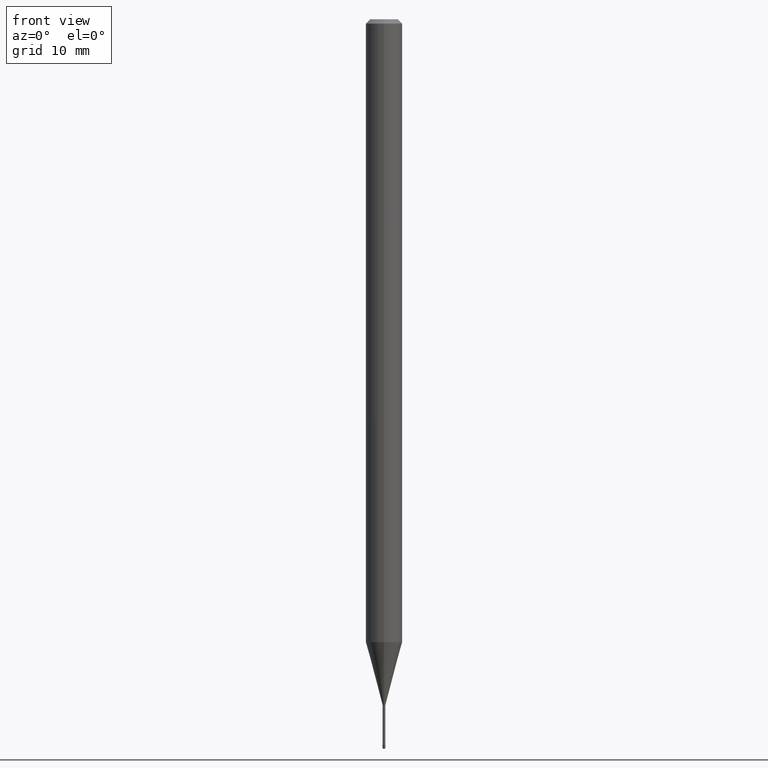
[diagram: clean part render]
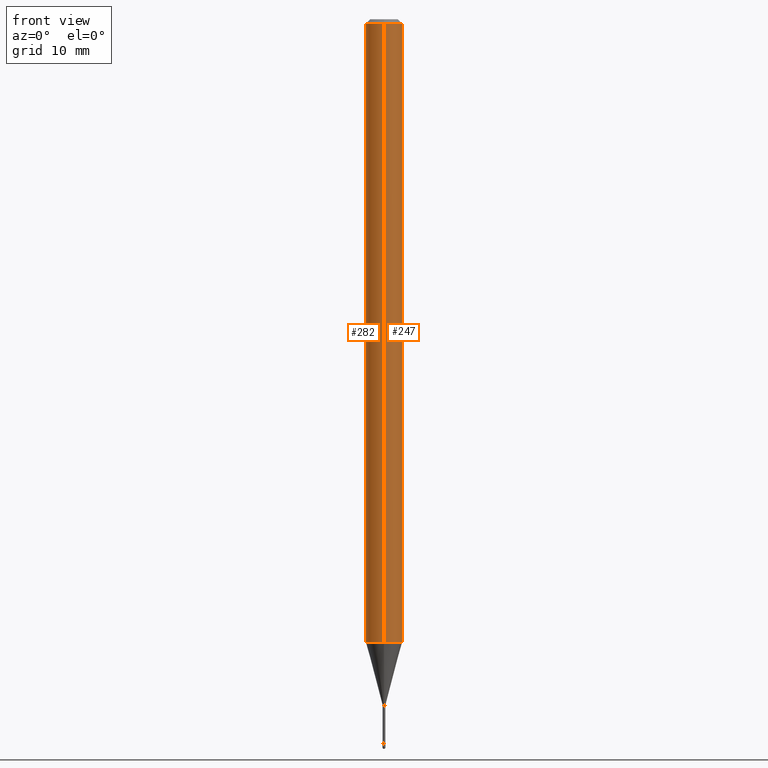
[diagram: same view with one multi-face feature highlighted, each face labeled with its STEP entity id]
A machine part, front view. The highlighted faces form ONE feature: a constant-radius fillet chain: 2 tangent blend faces with common blend radius 1.5875 mm. The faces share edges in the B-rep.
Their STEP definitions:
[1] entity #247 (Cylinder):
#2 = DIRECTION ( 'NONE',  ( -6.982962677686265922E-15, -1.000000000000000000, 3.483106191921935554E-15 ) ) ;
#18 = CARTESIAN_POINT ( 'NONE',  ( -4.364351673553394567E-16, -0.06250000000000745237, -2.134287463322519063 ) ) ;
#20 = CARTESIAN_POINT ( 'NONE',  ( 4.440892098500625669E-16, 0.06250000000000000000, 2.597540414594082475E-16 ) ) ;
#22 = EDGE_CURVE ( 'NONE', #486, #312, #194, .T. ) ;
#29 = AXIS2_PLACEMENT_3D ( 'NONE', #542, #212, #240 ) ;
#38 = ORIENTED_EDGE ( 'NONE', *, *, #558, .T. ) ;
#56 = DIRECTION ( 'NONE',  ( -2.444331714462359119E-29, 3.493109718909404263E-15, 1.000000000000000000 ) ) ;
#71 = ORIENTED_EDGE ( 'NONE', *, *, #346, .F. ) ;
#76 = CARTESIAN_POINT ( 'NONE',  ( 5.216906534378652814E-29, -7.455300281078391221E-15, -2.134287463322519507 ) ) ;
#90 = ORIENTED_EDGE ( 'NONE', *, *, #22, .F. ) ;
#102 = AXIS2_PLACEMENT_3D ( 'NONE', #76, #456, #425 ) ;
#141 = CARTESIAN_POINT ( 'NONE',  ( 4.440892098501151740E-16, 0.06249999999999995143, -0.01500000000000030129 ) ) ;
#173 = VECTOR ( 'NONE', #379, 39.37007874015748143 ) ;
#183 = CIRCLE ( 'NONE', #102, 0.06250000000000000000 ) ;
#193 = FACE_OUTER_BOUND ( 'NONE', #382, .T. ) ;
#194 = LINE ( 'NONE', #537, #173 ) ;
#195 = DIRECTION ( 'NONE',  ( -2.444331714462359119E-29, 3.493109718909404657E-15, 1.000000000000000000 ) ) ;
#212 = DIRECTION ( 'NONE',  ( -2.444331714462359119E-29, 3.493109718909404657E-15, 1.000000000000000000 ) ) ;
#240 = DIRECTION ( 'NONE',  ( -6.982962677686265922E-15, -1.000000000000000000, 3.493109718909404263E-15 ) ) ;
#247 = ADVANCED_FACE ( 'NONE', ( #193 ), #412, .T. ) ;
#271 = AXIS2_PLACEMENT_3D ( 'NONE', #275, #195, #2 ) ;
#275 = CARTESIAN_POINT ( 'NONE',  ( 3.666497571693559050E-31, -5.239664578364136248E-17, -0.01500000000000008271 ) ) ;
#300 = CIRCLE ( 'NONE', #271, 0.06250000000000000000 ) ;
#312 = VERTEX_POINT ( 'NONE', #323 ) ;
#314 = EDGE_CURVE ( 'NONE', #486, #522, #183, .T. ) ;
#323 = CARTESIAN_POINT ( 'NONE',  ( -4.364351673553912750E-16, -0.06250000000000005551, -0.01499999999999986587 ) ) ;
#324 = VERTEX_POINT ( 'NONE', #141 ) ;
#346 = EDGE_CURVE ( 'NONE', #312, #324, #300, .T. ) ;
#379 = DIRECTION ( 'NONE',  ( -2.444331714462359119E-29, 3.493109718909404263E-15, 1.000000000000000000 ) ) ;
#382 = EDGE_LOOP ( 'NONE', ( #476, #38, #71, #90 ) ) ;
#387 = VECTOR ( 'NONE', #56, 39.37007874015748143 ) ;
#412 = CYLINDRICAL_SURFACE ( 'NONE', #29, 0.06250000000000000000 ) ;
#425 = DIRECTION ( 'NONE',  ( -6.982962677686265922E-15, -1.000000000000000000, 4.370956789862821150E-15 ) ) ;
#456 = DIRECTION ( 'NONE',  ( -2.444331714462359119E-29, 3.493109718909404657E-15, 1.000000000000000000 ) ) ;
#476 = ORIENTED_EDGE ( 'NONE', *, *, #314, .T. ) ;
#486 = VERTEX_POINT ( 'NONE', #18 ) ;
#505 = LINE ( 'NONE', #20, #387 ) ;
#510 = CARTESIAN_POINT ( 'NONE',  ( 4.440892098501145824E-16, 0.06249999999999254069, -2.134287463322519507 ) ) ;
#522 = VERTEX_POINT ( 'NONE', #510 ) ;
#537 = CARTESIAN_POINT ( 'NONE',  ( -4.364351673553916201E-16, -0.06250000000000000000, 6.963927563230838790E-16 ) ) ;
#542 = CARTESIAN_POINT ( 'NONE',  ( -1.169113584055446105E-44, 1.669184350826100908E-30, 4.780733988912460139E-16 ) ) ;
#558 = EDGE_CURVE ( 'NONE', #522, #324, #505, .T. ) ;
[2] entity #282 (Cylinder):
#18 = CARTESIAN_POINT ( 'NONE',  ( -4.364351673553394567E-16, -0.06250000000000745237, -2.134287463322519063 ) ) ;
#20 = CARTESIAN_POINT ( 'NONE',  ( 4.440892098500625669E-16, 0.06250000000000000000, 2.597540414594082475E-16 ) ) ;
#22 = EDGE_CURVE ( 'NONE', #486, #312, #194, .T. ) ;
#39 = AXIS2_PLACEMENT_3D ( 'NONE', #298, #147, #452 ) ;
#56 = DIRECTION ( 'NONE',  ( -2.444331714462359119E-29, 3.493109718909404263E-15, 1.000000000000000000 ) ) ;
#141 = CARTESIAN_POINT ( 'NONE',  ( 4.440892098501151740E-16, 0.06249999999999995143, -0.01500000000000030129 ) ) ;
#147 = DIRECTION ( 'NONE',  ( -2.444331714462359119E-29, 3.493109718909404657E-15, 1.000000000000000000 ) ) ;
#173 = VECTOR ( 'NONE', #379, 39.37007874015748143 ) ;
#178 = DIRECTION ( 'NONE',  ( -2.444331714462359119E-29, 3.493109718909404657E-15, 1.000000000000000000 ) ) ;
#188 = ORIENTED_EDGE ( 'NONE', *, *, #196, .F. ) ;
#194 = LINE ( 'NONE', #537, #173 ) ;
#196 = EDGE_CURVE ( 'NONE', #324, #312, #226, .T. ) ;
#202 = EDGE_CURVE ( 'NONE', #522, #486, #434, .T. ) ;
#219 = AXIS2_PLACEMENT_3D ( 'NONE', #305, #178, #547 ) ;
#226 = CIRCLE ( 'NONE', #219, 0.06250000000000000000 ) ;
#248 = CYLINDRICAL_SURFACE ( 'NONE', #39, 0.06250000000000000000 ) ;
#282 = ADVANCED_FACE ( 'NONE', ( #285 ), #248, .T. ) ;
#285 = FACE_OUTER_BOUND ( 'NONE', #347, .T. ) ;
#298 = CARTESIAN_POINT ( 'NONE',  ( -1.169113584055446105E-44, 1.669184350826100908E-30, 4.780733988912460139E-16 ) ) ;
#305 = CARTESIAN_POINT ( 'NONE',  ( 3.666497571693559050E-31, -5.239664578364136248E-17, -0.01500000000000008271 ) ) ;
#312 = VERTEX_POINT ( 'NONE', #323 ) ;
#323 = CARTESIAN_POINT ( 'NONE',  ( -4.364351673553912750E-16, -0.06250000000000005551, -0.01499999999999986587 ) ) ;
#324 = VERTEX_POINT ( 'NONE', #141 ) ;
#329 = AXIS2_PLACEMENT_3D ( 'NONE', #430, #335, #551 ) ;
#335 = DIRECTION ( 'NONE',  ( -2.444331714462359119E-29, 3.493109718909404657E-15, 1.000000000000000000 ) ) ;
#347 = EDGE_LOOP ( 'NONE', ( #445, #563, #373, #188 ) ) ;
#373 = ORIENTED_EDGE ( 'NONE', *, *, #22, .T. ) ;
#379 = DIRECTION ( 'NONE',  ( -2.444331714462359119E-29, 3.493109718909404263E-15, 1.000000000000000000 ) ) ;
#387 = VECTOR ( 'NONE', #56, 39.37007874015748143 ) ;
#430 = CARTESIAN_POINT ( 'NONE',  ( 5.216906534378652814E-29, -7.455300281078391221E-15, -2.134287463322519507 ) ) ;
#434 = CIRCLE ( 'NONE', #329, 0.06250000000000000000 ) ;
#445 = ORIENTED_EDGE ( 'NONE', *, *, #558, .F. ) ;
#452 = DIRECTION ( 'NONE',  ( -6.982962677686265922E-15, -1.000000000000000000, 3.493109718909404263E-15 ) ) ;
#486 = VERTEX_POINT ( 'NONE', #18 ) ;
#505 = LINE ( 'NONE', #20, #387 ) ;
#510 = CARTESIAN_POINT ( 'NONE',  ( 4.440892098501145824E-16, 0.06249999999999254069, -2.134287463322519507 ) ) ;
#522 = VERTEX_POINT ( 'NONE', #510 ) ;
#537 = CARTESIAN_POINT ( 'NONE',  ( -4.364351673553916201E-16, -0.06250000000000000000, 6.963927563230838790E-16 ) ) ;
#547 = DIRECTION ( 'NONE',  ( -6.982962677686265922E-15, -1.000000000000000000, 3.483106191921935554E-15 ) ) ;
#551 = DIRECTION ( 'NONE',  ( -6.982962677686265922E-15, -1.000000000000000000, 4.370956789862821150E-15 ) ) ;
#558 = EDGE_CURVE ( 'NONE', #522, #324, #505, .T. ) ;
#563 = ORIENTED_EDGE ( 'NONE', *, *, #202, .T. ) ;